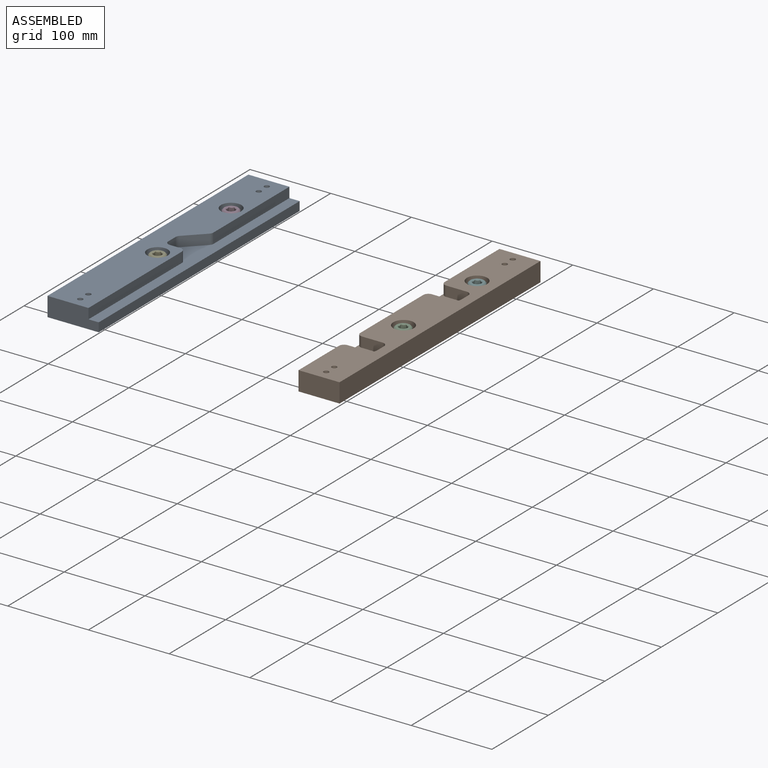
[diagram: assembled view]
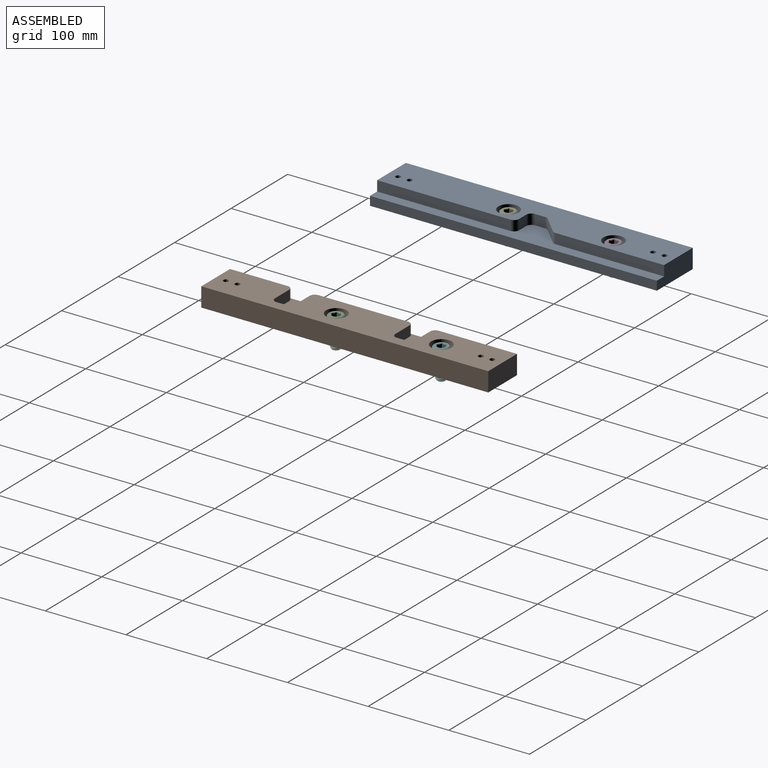
[diagram: assembled view, second angle]
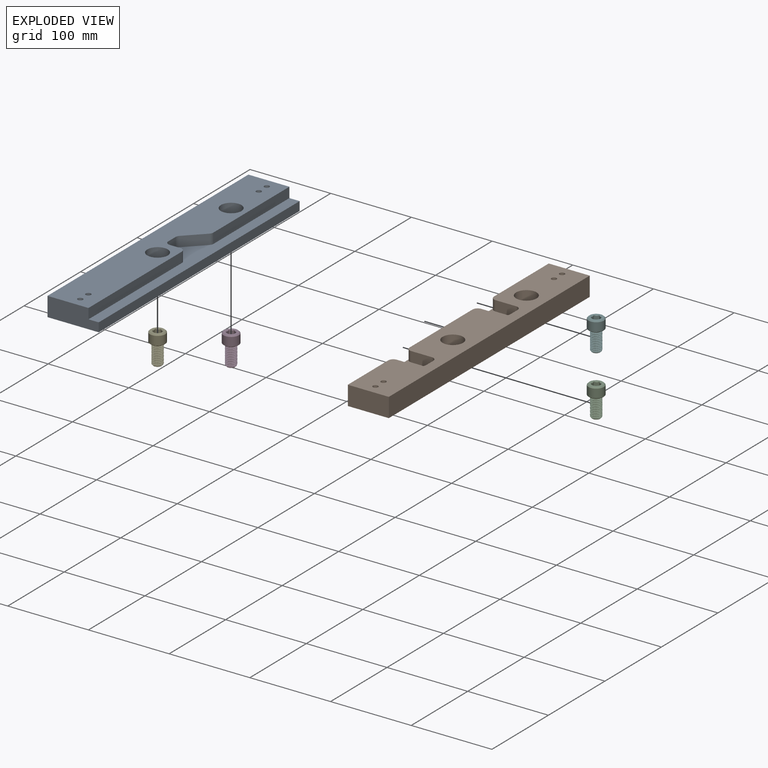
[diagram: exploded view]
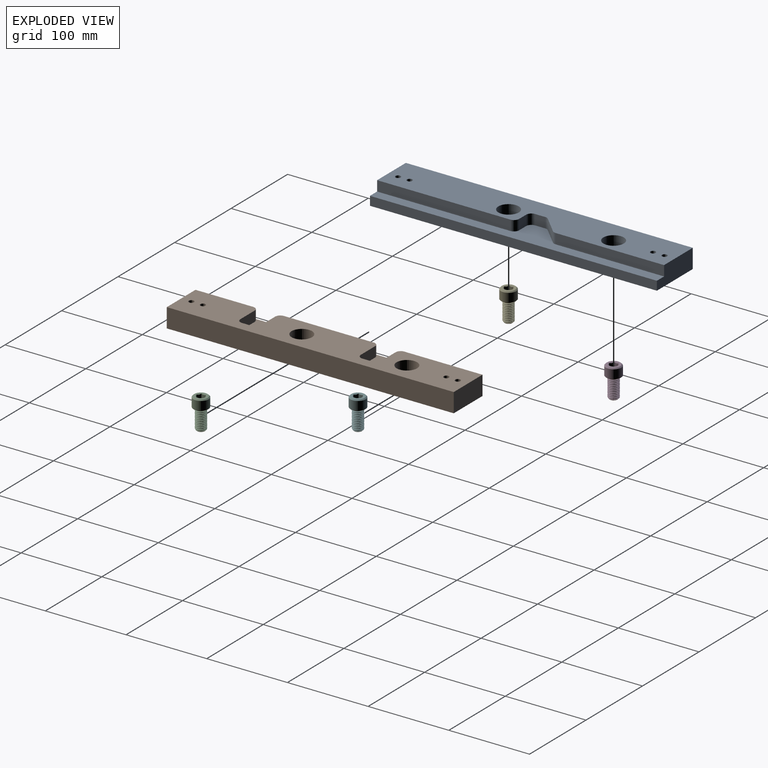
[diagram: exploded view, second angle]
ASSEMBLY  parts=6 mates=4
PART A: 26 faces, bbox 63.5x355.6x23.8 mm
  f0: plane 355.6x11.11mm, normal (1,0,0), area 3951.6mm2, adj f1,f3,f5,f21
  f1: plane 63.5x23.81mm, normal (0,1,0), area 1350.8mm2, adj f0,f2,f4,f5,f18,f21
  f2: plane 355.6x23.81mm, normal (-1,0,0), area 8467.7mm2, adj f1,f3,f4,f5
  f3: plane 63.5x23.81mm, normal (0,-1,0), area 1350.8mm2, adj f0,f2,f4,f5,f17,f21
  f4: plane 355.6x50.8mm, normal (0,0,1), area 16051.1mm2, adj f1,f2,f3,f8,f11,f12,f13,f14
  f5: plane 355.6x63.5mm, normal (0,0,-1), area 22200.6mm2, adj f0,f1,f2,f3,f6,f9,f12,f13
  f6: cylinder r=6.35mm len=12.7mm, axis (0,0,1), area 392.7mm2, adj f5,f7
  f7: plane 25.4x25.4mm, normal (0,0,1), area 380mm2, adj f6,f8
  f8: cylinder r=12.7mm len=25.4mm, axis (0,0,1), area 1114.8mm2, adj f4,f7
  f9: cylinder r=6.35mm len=12.7mm, axis (0,0,1), area 392.7mm2, adj f5,f10
  f10: plane 25.4x25.4mm, normal (0,0,1), area 380mm2, adj f9,f11
  f11: cylinder r=12.7mm len=25.4mm, axis (0,0,1), area 1114.8mm2, adj f4,f10
  f12: cylinder r=3.17mm len=23.81mm, axis (0,0,1), area 475mm2, adj f4,f5
  f13: cylinder r=3.17mm len=23.81mm, axis (0,0,1), area 475mm2, adj f4,f5
  f14: cylinder r=3.17mm len=23.81mm, axis (0,0,1), area 475mm2, adj f4,f5
  f15: cylinder r=3.17mm len=23.81mm, axis (0,0,1), area 475mm2, adj f4,f5
  f16: plane 12.7x12.7mm, normal (0,1,0), area 161.3mm2, adj f4,f21,f22,f25
  f17: plane 165.1x12.7mm, normal (1,0,0), area 2096.8mm2, adj f3,f4,f21,f22
  f18: plane 134.44x12.7mm, normal (1,0,0), area 1707.4mm2, adj f1,f4,f21,f23
  f19: plane 21.68x21.68mm, normal (0.71,-0.71,0), area 389.4mm2, adj f4,f21,f23,f24
  f20: plane 12.7x12.7mm, normal (1,0,0), area 161.3mm2, adj f4,f21,f24,f25
  f21: plane 355.6x38.1mm, normal (0,0,1), area 5389.4mm2, adj f0,f1,f3,f16,f17,f18,f19,f20
  f22: cylinder r=6.35mm len=12.7mm, axis (0,0,1), area 126.7mm2, adj f4,f16,f17,f21
  f23: cylinder r=6.35mm len=12.7mm, axis (0,0,-1), area 63.3mm2, adj f4,f18,f19,f21
  f24: cylinder r=6.35mm len=12.7mm, axis (0,0,-1), area 63.3mm2, adj f4,f19,f20,f21
  f25: cylinder r=6.35mm len=12.7mm, axis (0,0,1), area 126.7mm2, adj f4,f16,f20,f21
PART B: 32 faces, bbox 50.8x355.6x23.8 mm
  f0: plane 355.6x50.8mm, normal (0,0,1), area 14988.9mm2, adj f1,f2,f3,f4,f8,f11,f12,f13
  f1: plane 50.8x23.81mm, normal (0,1,0), area 1209.7mm2, adj f0,f2,f4,f5
  f2: plane 355.6x23.81mm, normal (-1,0,0), area 7500mm2, adj f0,f1,f3,f5,f19,f23,f24,f25
  f3: plane 50.8x23.81mm, normal (0,-1,0), area 1209.7mm2, adj f0,f2,f4,f5
  f4: plane 355.6x23.81mm, normal (1,0,0), area 8467.7mm2, adj f0,f1,f3,f5
  f5: plane 355.6x50.8mm, normal (0,0,-1), area 17684.4mm2, adj f1,f2,f3,f4,f6,f9,f12,f13
  f6: cylinder r=6.35mm len=12.7mm, axis (0,0,1), area 392.7mm2, adj f5,f7
  f7: plane 25.4x25.4mm, normal (0,0,1), area 380mm2, adj f6,f8
  f8: cylinder r=12.7mm len=25.4mm, axis (0,0,1), area 1114.8mm2, adj f0,f7
  f9: cylinder r=6.35mm len=12.7mm, axis (0,0,1), area 392.7mm2, adj f5,f10
  f10: plane 25.4x25.4mm, normal (0,0,1), area 380mm2, adj f9,f11
  f11: cylinder r=12.7mm len=25.4mm, axis (0,0,1), area 1114.8mm2, adj f0,f10
  f12: cylinder r=3.17mm len=23.81mm, axis (0,0,1), area 475mm2, adj f0,f5
  f13: cylinder r=3.17mm len=23.81mm, axis (0,0,1), area 475mm2, adj f0,f5
  f14: cylinder r=3.17mm len=23.81mm, axis (0,0,1), area 475mm2, adj f0,f5
  f15: cylinder r=3.17mm len=23.81mm, axis (0,0,1), area 475mm2, adj f0,f5
  f16: plane 25.4x12.7mm, normal (0,-1,0), area 322.6mm2, adj f0,f19,f24,f27
  f17: plane 25.4x12.7mm, normal (0,1,0), area 322.6mm2, adj f0,f19,f25,f26
  f18: plane 12.7x12.7mm, normal (-1,0,0), area 161.3mm2, adj f0,f19,f26,f27
  f19: plane 38.1x38.1mm, normal (0,0,1), area 967.7mm2, adj f2,f16,f17,f18,f24,f25,f26,f27
  f20: plane 25.4x12.7mm, normal (0,-1,0), area 322.6mm2, adj f0,f23,f28,f31
  f21: plane 25.4x12.7mm, normal (0,1,0), area 322.6mm2, adj f0,f23,f29,f30
  f22: plane 12.7x12.7mm, normal (-1,0,0), area 161.3mm2, adj f0,f23,f28,f29
  f23: plane 38.1x38.1mm, normal (0,0,1), area 967.7mm2, adj f2,f20,f21,f22,f28,f29,f30,f31
  f24: cylinder r=6.35mm len=12.7mm, axis (0,0,-1), area 126.7mm2, adj f0,f2,f16,f19
  f25: cylinder r=6.35mm len=12.7mm, axis (0,0,1), area 126.7mm2, adj f0,f2,f17,f19
  f26: cylinder r=6.35mm len=12.7mm, axis (0,0,1), area 126.7mm2, adj f0,f17,f18,f19
  f27: cylinder r=6.35mm len=12.7mm, axis (0,0,-1), area 126.7mm2, adj f0,f16,f18,f19
  f28: cylinder r=6.35mm len=12.7mm, axis (0,0,-1), area 126.7mm2, adj f0,f20,f22,f23
  f29: cylinder r=6.35mm len=12.7mm, axis (0,0,1), area 126.7mm2, adj f0,f21,f22,f23
  f30: cylinder r=6.35mm len=12.7mm, axis (0,0,1), area 126.7mm2, adj f0,f2,f21,f23
  f31: cylinder r=6.35mm len=12.7mm, axis (0,0,-1), area 126.7mm2, adj f0,f2,f20,f23
PART C: 24 faces, bbox 21.1x40.9x21.1 mm
  f0: cylinder r=6.35mm len=23.93mm, axis (0,-1,0), area 176.8mm2, adj f2,f4,f5,f6
  f1: plane 9.77x9.77mm, normal (0,-1,0), area 75mm2, adj f2
  f2: cone r=4.88mm half-angle=45deg, axis (0,1,0), area 40mm2, adj f0,f1,f3,f4,f5
  f3: cylinder r=5.08mm len=25.2mm, axis (0,1,0), area 27.3mm2, adj f2,f4,f5,f6
  f4: bspline ~26.46x14.66mm, area 662mm2, adj f0,f2,f3,f6
  f5: bspline ~27.11x14.66mm, area 659.6mm2, adj f0,f2,f3,f6
  f6: plane 18.56x18.56mm, normal (0,-1,0), area 145mm2, adj f0,f3,f4,f5,f23
  f7: cylinder r=9.53mm len=19.05mm, axis (0,-1,0), area 646.1mm2, adj f22,f23
  f8: plane 18.3x18.3mm, normal (0,1,0), area 119.1mm2, adj f9,f10,f11,f12,f13,f14,f22
  f9: cone r=5.5mm half-angle=45deg, axis (0,1,0), area 0mm2, adj f8,f16
  f10: cone r=5.5mm half-angle=45deg, axis (0,1,0), area 0mm2, adj f8,f17
  f11: cone r=5.5mm half-angle=45deg, axis (0,1,0), area 0mm2, adj f8,f18
  f12: cone r=5.5mm half-angle=45deg, axis (0,1,0), area 0mm2, adj f8,f19
  f13: cone r=5.5mm half-angle=45deg, axis (0,1,0), area 0mm2, adj f8,f20
  f14: cone r=5.5mm half-angle=45deg, axis (0,1,0), area 0mm2, adj f8,f21
  f15: plane 11x9.53mm, normal (0,1,0), area 78.6mm2, adj f16,f17,f18,f19,f20,f21
  f16: plane 9.23x6.85mm, normal (-0.5,0,-0.87), area 36.6mm2, adj f9,f15,f17,f21
  f17: plane 9.23x7.59mm, normal (-1,0,0), area 36.6mm2, adj f10,f15,f16,f18
  f18: plane 9.23x6.85mm, normal (-0.5,0,0.87), area 36.6mm2, adj f11,f15,f17,f19
  f19: plane 9.23x6.85mm, normal (0.5,0,0.87), area 36.6mm2, adj f12,f15,f18,f20
  f20: plane 9.23x7.59mm, normal (1,0,0), area 36.6mm2, adj f13,f15,f19,f21
  f21: plane 9.23x6.85mm, normal (0.5,0,-0.87), area 36.6mm2, adj f14,f15,f16,f20
  f22: cone r=8.26mm half-angle=45deg, axis (0,-1,0), area 100.3mm2, adj f7,f8
  f23: cone r=9.53mm half-angle=45deg, axis (0,1,0), area 52mm2, adj f6,f7
PART D: same geometry as C
PART E: same geometry as C
PART F: same geometry as C
PLACE A t=(16.73,24.05,-11.39)mm
PLACE B t=(16.73,24.05,-11.39)mm
PLACE C rot(axis=(1,0,0),90deg) t=(168.96,-41.45,-26.95)mm
PLACE D rot(axis=(1,0,0),90deg) t=(-135.67,89.14,-26.95)mm
PLACE E rot(axis=(1,0,0),90deg) t=(-135.67,-41.04,-26.95)mm
PLACE F rot(axis=(1,0,0),90deg) t=(169.13,89.14,-26.95)mm
MATE fastened F.f0 <-> B.f9  axis (0,0,-1) through (169.13,89.14,-1.55)mm
MATE fastened D.f0 <-> A.f6  axis (0,0,-1) through (-135.67,89.14,-1.55)mm
MATE fastened C.f6 <-> B.f6  axis (0,0,-1) through (169.13,-41.04,-1.55)mm
MATE fastened E.f0 <-> A.f9  axis (0,0,-1) through (-135.67,-41.04,-1.55)mm
